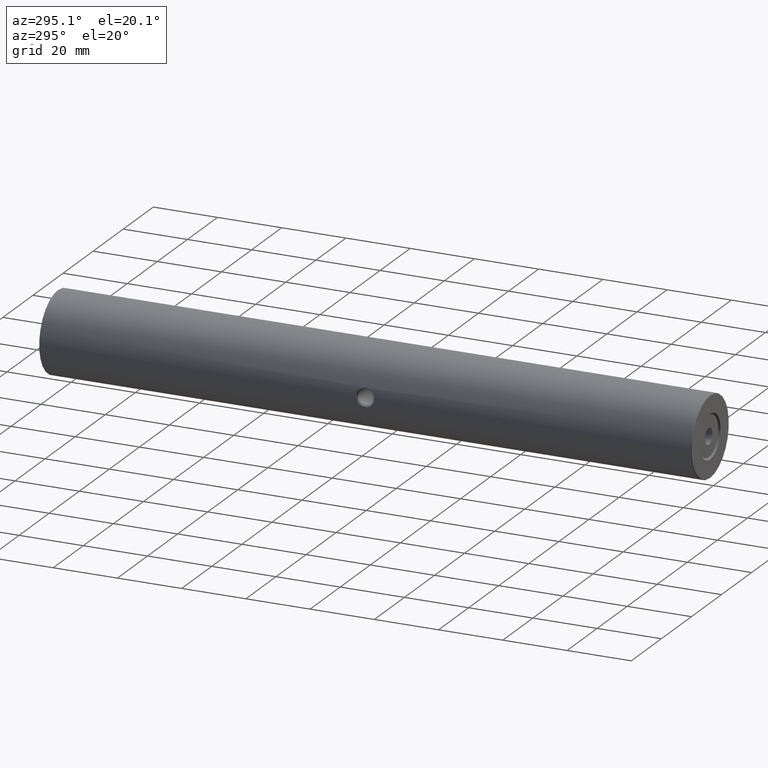
[diagram: clean part render]
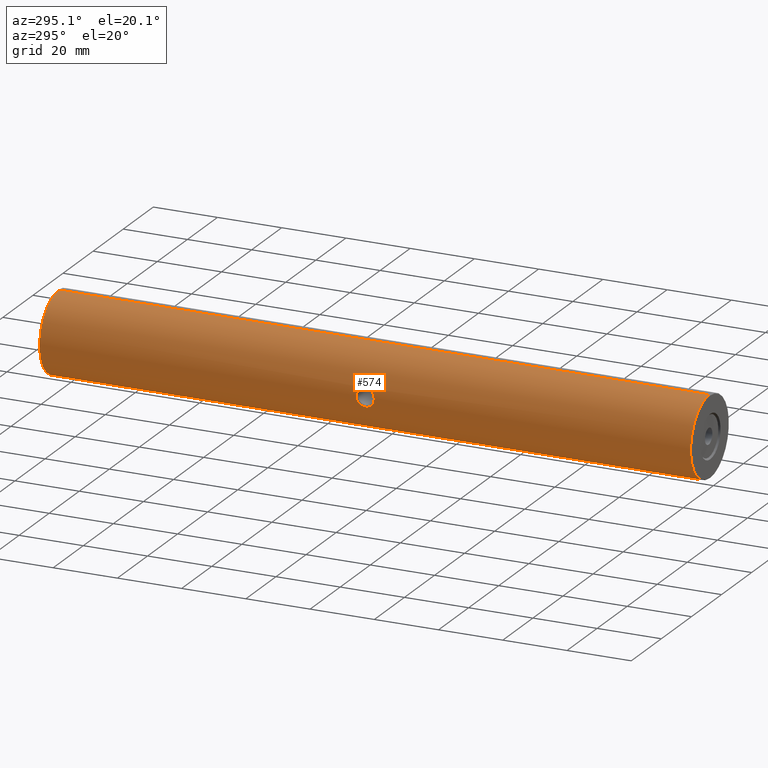
[diagram: same view with one face highlighted and labeled with its STEP entity id]
A machine part, auxiliary view. The second image highlights one B-rep face of the part: STEP entity #574.
In plain terms, the highlighted cylindrical surface (partial cylindrical patch) has radius 12.5 mm, axis along (-0, -1, -0).
Its self-contained STEP definition (entity closure, byte-faithful):
#82 = CARTESIAN_POINT ( 'NONE',  ( -34.72924432496380120, 0.1489096346690376160, 52.61311078804214247 ) ) ;
#99 = CARTESIAN_POINT ( 'NONE',  ( -34.91000489704502741, 3.784083020754036575, 51.54180631073815277 ) ) ;
#104 = VERTEX_POINT ( 'NONE', #765 ) ;
#118 = CARTESIAN_POINT ( 'NONE',  ( -34.66195746431352376, 1.211812476573583597, 52.90917384922278899 ) ) ;
#137 = CARTESIAN_POINT ( 'NONE',  ( -34.98808031034837995, -1.341176413164853365, 50.66066995131220096 ) ) ;
#278 = CARTESIAN_POINT ( 'NONE',  ( -34.68408990658787872, 0.6657967389231504995, 47.18465315096210588 ) ) ;
#296 = CARTESIAN_POINT ( 'NONE',  ( -34.81219287684745467, 3.255432286787874219, 47.80758469896307616 ) ) ;
#302 = CARTESIAN_POINT ( 'NONE',  ( -22.50520183104453409, 102.9982521847693846, 50.00000000000000000 ) ) ;
#305 = CIRCLE ( 'NONE', #2250, 12.49999999999999645 ) ;
#317 = DIRECTION ( 'NONE',  ( -0.0000000000000000000, -1.000000000000000000, -0.0000000000000000000 ) ) ;
#335 = CARTESIAN_POINT ( 'NONE',  ( -34.85728882727387656, -0.7200549649968812638, 51.92206626468250619 ) ) ;
#401 = CARTESIAN_POINT ( 'NONE',  ( -22.50520183104453409, 102.7482521847693846, 62.50000000000000000 ) ) ;
#402 = CARTESIAN_POINT ( 'NONE',  ( -34.94725856888391036, 3.958573559351553861, 51.20539725429111400 ) ) ;
#533 = CARTESIAN_POINT ( 'NONE',  ( -34.72889004346956199, 0.1521183056255128729, 47.38523661628921246 ) ) ;
#550 = CARTESIAN_POINT ( 'NONE',  ( -34.81216474023066354, -0.4587072315104847586, 47.80748851897894269 ) ) ;
#568 = EDGE_CURVE ( 'NONE', #3102, #1810, #2253, .T. ) ;
#574 = ADVANCED_FACE ( 'NONE', ( #3006, #1622 ), #817, .T. ) ;
#603 = CARTESIAN_POINT ( 'NONE',  ( -35.00520183104453764, -1.413082124769271530, 50.00000000000000000 ) ) ;
#631 = EDGE_LOOP ( 'NONE', ( #2491, #1961, #2261, #1709 ) ) ;
#640 = CARTESIAN_POINT ( 'NONE',  ( -34.81267991287085550, -0.4618486554977865866, 52.18960616404260122 ) ) ;
#675 = CARTESIAN_POINT ( 'NONE',  ( -34.85705643049906399, 3.515358686858432780, 51.92363226179139701 ) ) ;
#720 = EDGE_CURVE ( 'NONE', #2297, #104, #1898, .T. ) ;
#765 = CARTESIAN_POINT ( 'NONE',  ( -22.50520183104453409, -99.95174781523061824, 62.50000000000000000 ) ) ;
#782 = CARTESIAN_POINT ( 'NONE',  ( -34.98691299260826781, -1.339639162813645257, 49.23677669507345200 ) ) ;
#797 = CARTESIAN_POINT ( 'NONE',  ( -34.78997005406234422, 3.114338606112261765, 47.68786276457184670 ) ) ;
#812 = CARTESIAN_POINT ( 'NONE',  ( -34.97116716007708703, 4.065639543346105000, 49.06127516949060663 ) ) ;
#817 = CYLINDRICAL_SURFACE ( 'NONE', #1023, 12.49999999999999645 ) ;
#834 = LINE ( 'NONE', #1075, #1605 ) ;
#856 = DIRECTION ( 'NONE',  ( 0.0000000000000000000, 0.0000000000000000000, -1.000000000000000000 ) ) ;
#866 = CARTESIAN_POINT ( 'NONE',  ( -34.72905683929546683, 2.646135917268398696, 52.61400507397642201 ) ) ;
#885 = CARTESIAN_POINT ( 'NONE',  ( -34.66752058121687696, 1.766213776329817797, 52.88584409472475301 ) ) ;
#904 = CARTESIAN_POINT ( 'NONE',  ( -34.69672515563067350, 2.303875218729430241, 52.76087174921040202 ) ) ;
#909 = DIRECTION ( 'NONE',  ( 0.0000000000000000000, 0.0000000000000000000, 1.000000000000000000 ) ) ;
#921 = CARTESIAN_POINT ( 'NONE',  ( -34.98663707282269542, 4.134943201753675801, 50.76675213567374101 ) ) ;
#931 = EDGE_CURVE ( 'NONE', #2297, #1180, #305, .T. ) ;
#1008 = AXIS2_PLACEMENT_3D ( 'NONE', #2234, #3298, #909 ) ;
#1023 = AXIS2_PLACEMENT_3D ( 'NONE', #302, #3457, #856 ) ;
#1055 = CARTESIAN_POINT ( 'NONE',  ( -34.93943696048884817, -1.127055212647323001, 48.70724999355458351 ) ) ;
#1073 = CARTESIAN_POINT ( 'NONE',  ( -35.00520183104453054, -1.413082089048403267, 49.61579498167234448 ) ) ;
#1075 = CARTESIAN_POINT ( 'NONE',  ( -22.50520183104453409, 102.9982521847693846, 37.50000000000000711 ) ) ;
#1120 = DIRECTION ( 'NONE',  ( -0.0000000000000000000, -1.000000000000000000, -0.0000000000000000000 ) ) ;
#1148 = CARTESIAN_POINT ( 'NONE',  ( -34.74827243125633913, -0.01252608448357636108, 52.52367520659363720 ) ) ;
#1180 = VERTEX_POINT ( 'NONE', #3161 ) ;
#1184 = CARTESIAN_POINT ( 'NONE',  ( -35.00080834475435410, -1.395005945047979923, 50.38049639823342574 ) ) ;
#1259 = EDGE_CURVE ( 'NONE', #1810, #3102, #1462, .T. ) ;
#1319 = CARTESIAN_POINT ( 'NONE',  ( -34.92056304548296453, -1.039858968404231865, 48.53915210866000507 ) ) ;
#1324 = CARTESIAN_POINT ( 'NONE',  ( -35.00520147448046515, 4.209585013874988846, 50.00298564924415956 ) ) ;
#1355 = CARTESIAN_POINT ( 'NONE',  ( -34.66193446152058755, 1.214990703615521861, 47.09073003121878997 ) ) ;
#1428 = CARTESIAN_POINT ( 'NONE',  ( -35.00520147448046515, 4.209585013874988846, 50.00298564924415956 ) ) ;
#1443 = CARTESIAN_POINT ( 'NONE',  ( -34.78950233568573225, 3.111229001393462035, 52.31461547249366362 ) ) ;
#1460 = CARTESIAN_POINT ( 'NONE',  ( -34.92091958336118296, -1.041568019864894001, 51.45788940182448101 ) ) ;
#1462 = B_SPLINE_CURVE_WITH_KNOTS ( 'NONE', 3,
 ( #1428, #2191, #921, #402, #2495, #2479, #99, #3327, #675, #2227, #1443, #3292, #866, #904, #2513, #1929, #885, #1965, #2531, #118, #3000, #3035, #2463, #82, #1148, #1740, #640, #335, #2208, #1460, #1705, #3275, #3055, #2777, #137, #1184, #1983, #603 ),
 .UNSPECIFIED., .F., .F.,
 ( 4, 2, 2, 2, 2, 2, 2, 2, 2, 2, 2, 2, 2, 2, 2, 2, 2, 2, 4 ),
 ( 0.5000000000000000000, 0.5624999999999965583, 0.5781249999999962252, 0.5937499999999960032, 0.6249999999999964473, 0.6562499999999968914, 0.6874999999999972244, 0.7187499999999976685, 0.7343749999999978906, 0.7499999999999980016, 0.7812499999999984457, 0.8124999999999986677, 0.8437499999999991118, 0.8749999999999993339, 0.9062499999999997780, 0.9375000000000001110, 0.9531249999999997780, 0.9687499999999995559, 1.000000000000000000 ),
 .UNSPECIFIED. ) ;
#1475 = EDGE_LOOP ( 'NONE', ( #3313, #2022 ) ) ;
#1582 = CARTESIAN_POINT ( 'NONE',  ( -34.79001590680042000, -0.3182597613147393201, 47.68806332056860953 ) ) ;
#1605 = VECTOR ( 'NONE', #317, 1000.000000000000000 ) ;
#1617 = CARTESIAN_POINT ( 'NONE',  ( -34.66192908598772959, 1.582225631722754766, 47.09070756900332100 ) ) ;
#1622 = FACE_BOUND ( 'NONE', #1475, .T. ) ;
#1640 = VECTOR ( 'NONE', #1120, 1000.000000000000000 ) ;
#1661 = CARTESIAN_POINT ( 'NONE',  ( -22.50520183104453409, 102.9982521847693846, 62.50000000000000000 ) ) ;
#1705 = CARTESIAN_POINT ( 'NONE',  ( -34.93964974344274310, -1.128013625740017067, 51.29060020601416880 ) ) ;
#1709 = ORIENTED_EDGE ( 'NONE', *, *, #1804, .T. ) ;
#1740 = CARTESIAN_POINT ( 'NONE',  ( -34.79013651509779237, -0.3190703823435733777, 52.31129705548455178 ) ) ;
#1804 = EDGE_CURVE ( 'NONE', #2638, #104, #2189, .T. ) ;
#1810 = VERTEX_POINT ( 'NONE', #1971 ) ;
#1857 = CARTESIAN_POINT ( 'NONE',  ( -34.92365520086107722, 3.852890852512063091, 48.53098690614425692 ) ) ;
#1898 = LINE ( 'NONE', #1661, #1640 ) ;
#1929 = CARTESIAN_POINT ( 'NONE',  ( -34.67081540850627164, 1.856390161518441717, 52.87196965016499917 ) ) ;
#1935 = CARTESIAN_POINT ( 'NONE',  ( -35.00524692301911500, 4.209770318062037830, 49.81270652731087267 ) ) ;
#1961 = ORIENTED_EDGE ( 'NONE', *, *, #931, .T. ) ;
#1965 = CARTESIAN_POINT ( 'NONE',  ( -34.66304078550320611, 1.581811714280294767, 52.90465927043072725 ) ) ;
#1971 = CARTESIAN_POINT ( 'NONE',  ( -35.00520147448046515, 4.209585013874988846, 50.00298564924415956 ) ) ;
#1983 = CARTESIAN_POINT ( 'NONE',  ( -35.00520183104453764, -1.413082142476720815, 50.19045706922854322 ) ) ;
#2022 = ORIENTED_EDGE ( 'NONE', *, *, #1259, .T. ) ;
#2117 = CARTESIAN_POINT ( 'NONE',  ( -34.85689439159365577, -0.7179281710998585142, 48.07538743323033970 ) ) ;
#2122 = DIRECTION ( 'NONE',  ( -0.0000000000000000000, -1.000000000000000000, -0.0000000000000000000 ) ) ;
#2135 = CARTESIAN_POINT ( 'NONE',  ( -34.66645419303031872, 1.029721679340446894, 47.10942330579267434 ) ) ;
#2189 = CIRCLE ( 'NONE', #1008, 12.49999999999999645 ) ;
#2191 = CARTESIAN_POINT ( 'NONE',  ( -35.00511057740324361, 4.209214405500886436, 50.38354389311076886 ) ) ;
#2208 = CARTESIAN_POINT ( 'NONE',  ( -34.87963477421906333, -0.8371459405088903516, 51.77451349615057552 ) ) ;
#2227 = CARTESIAN_POINT ( 'NONE',  ( -34.81205133254193385, 3.254567286170596319, 52.19320050888280349 ) ) ;
#2234 = CARTESIAN_POINT ( 'NONE',  ( -22.50520183104453409, -99.95174781523061824, 50.00000000000000000 ) ) ;
#2250 = AXIS2_PLACEMENT_3D ( 'NONE', #3229, #2122, #2412 ) ;
#2253 = B_SPLINE_CURVE_WITH_KNOTS ( 'NONE', 3,
 ( #2949, #1073, #782, #1055, #1319, #3206, #2117, #550, #1582, #2916, #533, #2655, #278, #2135, #1355, #1617, #2689, #2388, #2670, #3452, #2406, #797, #296, #3189, #1857, #812, #2932, #2430, #1935, #1324 ),
 .UNSPECIFIED., .F., .F.,
 ( 4, 2, 2, 2, 2, 2, 2, 2, 2, 2, 2, 2, 2, 2, 4 ),
 ( 0.0000000000000000000, 0.06250000000000016653, 0.09375000000000019429, 0.1250000000000001943, 0.1562500000000002220, 0.1875000000000002498, 0.2187500000000002498, 0.2500000000000002220, 0.2812500000000002220, 0.3125000000000002776, 0.3437500000000002776, 0.3750000000000003331, 0.4375000000000002220, 0.4687500000000001110, 0.5000000000000000000 ),
 .UNSPECIFIED. ) ;
#2261 = ORIENTED_EDGE ( 'NONE', *, *, #2687, .T. ) ;
#2297 = VERTEX_POINT ( 'NONE', #401 ) ;
#2372 = CARTESIAN_POINT ( 'NONE',  ( -22.50520183104453409, -99.95174781523061824, 37.50000000000000711 ) ) ;
#2388 = CARTESIAN_POINT ( 'NONE',  ( -34.68404829436484960, 2.129844607503970977, 47.18447624009775154 ) ) ;
#2406 = CARTESIAN_POINT ( 'NONE',  ( -34.74847621066869863, 2.810539836582059081, 47.47735429480085401 ) ) ;
#2412 = DIRECTION ( 'NONE',  ( 0.0000000000000000000, 0.0000000000000000000, 1.000000000000000000 ) ) ;
#2430 = CARTESIAN_POINT ( 'NONE',  ( -35.00086437887828339, 4.191749029155259265, 49.62049296360569173 ) ) ;
#2463 = CARTESIAN_POINT ( 'NONE',  ( -34.69719134326829391, 0.4871785544746700114, 52.75879586369702423 ) ) ;
#2479 = CARTESIAN_POINT ( 'NONE',  ( -34.92002400583781707, 3.832124608341702654, 51.45923812917445872 ) ) ;
#2491 = ORIENTED_EDGE ( 'NONE', *, *, #720, .F. ) ;
#2495 = CARTESIAN_POINT ( 'NONE',  ( -34.93867267744608540, 3.919447845702028754, 51.29073167663086963 ) ) ;
#2513 = CARTESIAN_POINT ( 'NONE',  ( -34.68386991630578819, 2.126930833239301322, 52.81629139461827549 ) ) ;
#2531 = CARTESIAN_POINT ( 'NONE',  ( -34.66191919043988889, 1.488437803987015862, 52.90933378057250280 ) ) ;
#2596 = CARTESIAN_POINT ( 'NONE',  ( -35.00520183104453764, -1.413082124769271530, 50.00000000000000000 ) ) ;
#2638 = VERTEX_POINT ( 'NONE', #2372 ) ;
#2655 = CARTESIAN_POINT ( 'NONE',  ( -34.69688201949649198, 0.4909844491486256013, 47.23984144479317138 ) ) ;
#2670 = CARTESIAN_POINT ( 'NONE',  ( -34.69691194384349586, 2.305978899298617435, 47.23996501521980917 ) ) ;
#2687 = EDGE_CURVE ( 'NONE', #1180, #2638, #834, .T. ) ;
#2689 = CARTESIAN_POINT ( 'NONE',  ( -34.66651604186941427, 1.768063399945826841, 47.10968654203516337 ) ) ;
#2777 = CARTESIAN_POINT ( 'NONE',  ( -34.98275065808667961, -1.318488312173016430, 50.75447521944084883 ) ) ;
#2916 = CARTESIAN_POINT ( 'NONE',  ( -34.74815230533060628, -0.01157353960110989004, 47.47574332331905111 ) ) ;
#2932 = CARTESIAN_POINT ( 'NONE',  ( -34.98371482565011803, 4.119216514467694878, 49.24348063906650452 ) ) ;
#2949 = CARTESIAN_POINT ( 'NONE',  ( -35.00520183104453764, -1.413082124769271530, 50.00000000000000000 ) ) ;
#3000 = CARTESIAN_POINT ( 'NONE',  ( -34.66652474597411526, 1.028189448993799049, 52.89027716195609230 ) ) ;
#3006 = FACE_OUTER_BOUND ( 'NONE', #631, .T. ) ;
#3035 = CARTESIAN_POINT ( 'NONE',  ( -34.68406788087128945, 0.6663276251776539816, 52.81543937148246215 ) ) ;
#3055 = CARTESIAN_POINT ( 'NONE',  ( -34.97029888078463955, -1.264562310703709391, 50.93798354384917104 ) ) ;
#3102 = VERTEX_POINT ( 'NONE', #2596 ) ;
#3161 = CARTESIAN_POINT ( 'NONE',  ( -22.50520183104453409, 102.7482521847693846, 37.50000000000000711 ) ) ;
#3189 = CARTESIAN_POINT ( 'NONE',  ( -34.87974277251100119, 3.646729404079507297, 48.21237859076754262 ) ) ;
#3206 = CARTESIAN_POINT ( 'NONE',  ( -34.87939741779931069, -0.8359134744098847269, 48.22389352026589648 ) ) ;
#3229 = CARTESIAN_POINT ( 'NONE',  ( -22.50520183104453409, 102.7482521847693846, 50.00000000000000000 ) ) ;
#3275 = CARTESIAN_POINT ( 'NONE',  ( -34.96325857829891959, -1.233718698007581605, 51.02694110184886256 ) ) ;
#3292 = CARTESIAN_POINT ( 'NONE',  ( -34.74801352654728248, 2.806830232060824937, 52.52488523745061144 ) ) ;
#3298 = DIRECTION ( 'NONE',  ( 0.0000000000000000000, 1.000000000000000000, 0.0000000000000000000 ) ) ;
#3313 = ORIENTED_EDGE ( 'NONE', *, *, #568, .T. ) ;
#3327 = CARTESIAN_POINT ( 'NONE',  ( -34.87912024511822295, 3.630988285928343551, 51.77802314557396812 ) ) ;
#3452 = CARTESIAN_POINT ( 'NONE',  ( -34.72905173134131473, 2.645954825158868040, 47.38598351062026381 ) ) ;
#3457 = DIRECTION ( 'NONE',  ( -0.0000000000000000000, -1.000000000000000000, -0.0000000000000000000 ) ) ;